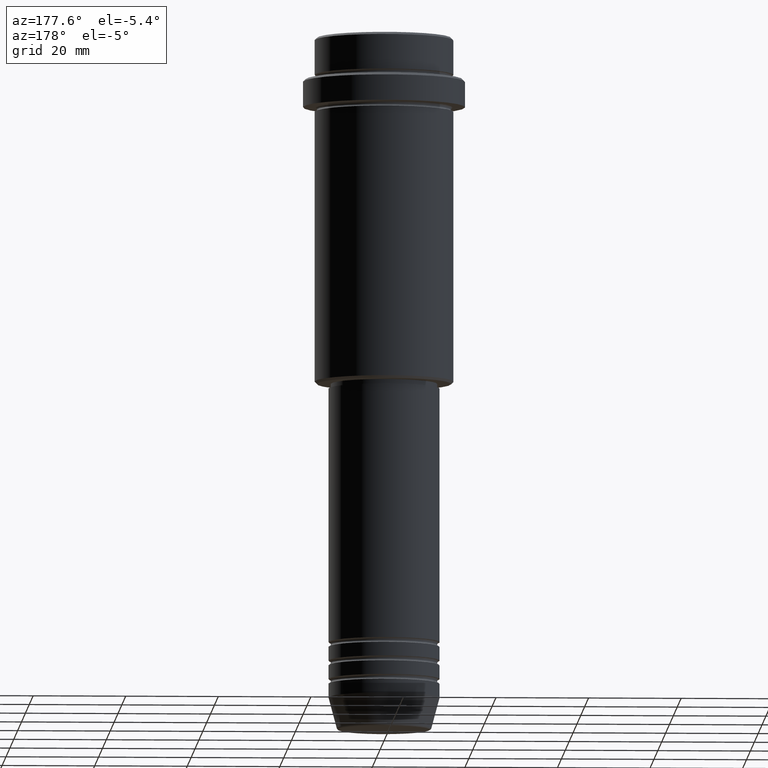
[diagram: clean part render]
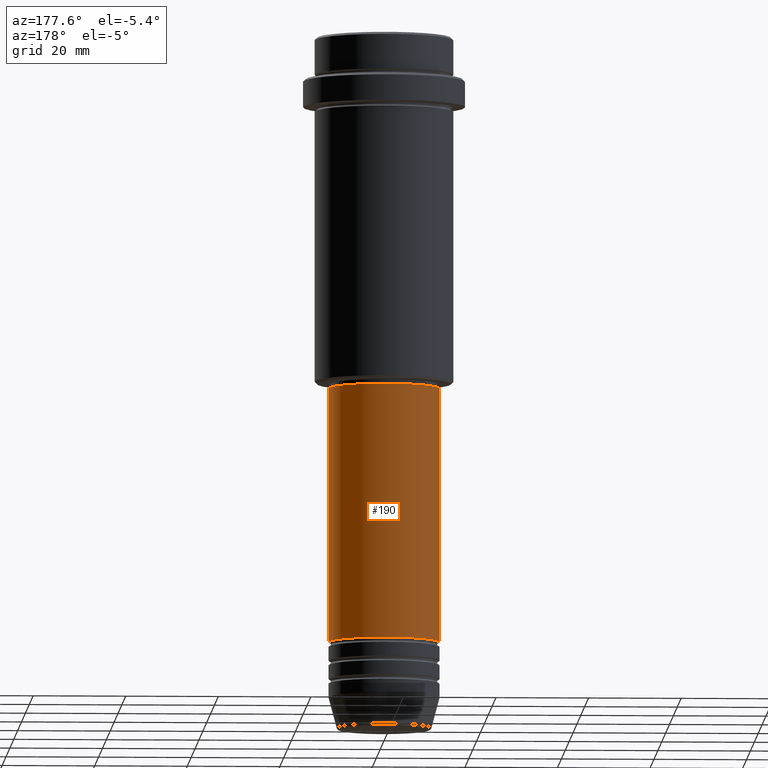
[diagram: same view with one face highlighted and labeled with its STEP entity id]
A machine part, auxiliary view. The second image highlights one B-rep face of the part: STEP entity #190.
In plain terms, the highlighted cylindrical surface (partial cylindrical patch) has radius 12 mm, axis along (-0, -0, 1).
Its self-contained STEP definition (entity closure, byte-faithful):
#5 = ORIENTED_EDGE ( 'NONE', *, *, #665, .F. ) ;
#69 = VERTEX_POINT ( 'NONE', #381 ) ;
#71 = VERTEX_POINT ( 'NONE', #1142 ) ;
#148 = AXIS2_PLACEMENT_3D ( 'NONE', #1237, #286, #724 ) ;
#190 = ADVANCED_FACE ( 'NONE', ( #391 ), #1367, .T. ) ;
#280 = VERTEX_POINT ( 'NONE', #1285 ) ;
#281 = EDGE_CURVE ( 'NONE', #280, #884, #1406, .T. ) ;
#286 = DIRECTION ( 'NONE',  ( -0.000000000000000000, -0.000000000000000000, 1.000000000000000000 ) ) ;
#300 = DIRECTION ( 'NONE',  ( -0.000000000000000000, -0.000000000000000000, 1.000000000000000000 ) ) ;
#313 = CARTESIAN_POINT ( 'NONE',  ( 0.000000000000000000, 0.000000000000000000, -76.00000000000000000 ) ) ;
#315 = DIRECTION ( 'NONE',  ( 1.000000000000000000, 0.000000000000000000, 0.000000000000000000 ) ) ;
#381 = CARTESIAN_POINT ( 'NONE',  ( -11.99999999999999822, 1.469576158976823750E-15, -76.00000000000000000 ) ) ;
#391 = FACE_OUTER_BOUND ( 'NONE', #829, .T. ) ;
#399 = EDGE_CURVE ( 'NONE', #884, #69, #990, .T. ) ;
#411 = ORIENTED_EDGE ( 'NONE', *, *, #281, .T. ) ;
#435 = ORIENTED_EDGE ( 'NONE', *, *, #399, .T. ) ;
#527 = AXIS2_PLACEMENT_3D ( 'NONE', #1391, #1071, #315 ) ;
#638 = DIRECTION ( 'NONE',  ( 1.000000000000000000, 0.000000000000000000, 0.000000000000000000 ) ) ;
#664 = CIRCLE ( 'NONE', #1200, 11.99999999999999822 ) ;
#665 = EDGE_CURVE ( 'NONE', #280, #71, #1148, .T. ) ;
#724 = DIRECTION ( 'NONE',  ( 1.000000000000000000, 0.000000000000000000, 0.000000000000000000 ) ) ;
#759 = EDGE_CURVE ( 'NONE', #71, #69, #664, .T. ) ;
#764 = CARTESIAN_POINT ( 'NONE',  ( 12.00000000000000000, 0.000000000000000000, 0.000000000000000000 ) ) ;
#783 = CARTESIAN_POINT ( 'NONE',  ( -12.00000000000000000, 1.469576158976823947E-15, 0.000000000000000000 ) ) ;
#829 = EDGE_LOOP ( 'NONE', ( #411, #435, #1400, #5 ) ) ;
#884 = VERTEX_POINT ( 'NONE', #1197 ) ;
#945 = DIRECTION ( 'NONE',  ( -0.000000000000000000, -0.000000000000000000, 1.000000000000000000 ) ) ;
#990 = LINE ( 'NONE', #783, #1018 ) ;
#1018 = VECTOR ( 'NONE', #1212, 1000.000000000000000 ) ;
#1071 = DIRECTION ( 'NONE',  ( -0.000000000000000000, -0.000000000000000000, 1.000000000000000000 ) ) ;
#1107 = VECTOR ( 'NONE', #300, 1000.000000000000000 ) ;
#1142 = CARTESIAN_POINT ( 'NONE',  ( 11.99999999999999822, 0.000000000000000000, -76.00000000000000000 ) ) ;
#1148 = LINE ( 'NONE', #764, #1107 ) ;
#1197 = CARTESIAN_POINT ( 'NONE',  ( -12.00000000000000000, 1.469576158976823947E-15, -130.9999999999998863 ) ) ;
#1200 = AXIS2_PLACEMENT_3D ( 'NONE', #313, #945, #638 ) ;
#1212 = DIRECTION ( 'NONE',  ( -0.000000000000000000, -0.000000000000000000, 1.000000000000000000 ) ) ;
#1237 = CARTESIAN_POINT ( 'NONE',  ( 0.000000000000000000, 0.000000000000000000, 0.000000000000000000 ) ) ;
#1285 = CARTESIAN_POINT ( 'NONE',  ( 12.00000000000000000, 0.000000000000000000, -130.9999999999998863 ) ) ;
#1367 = CYLINDRICAL_SURFACE ( 'NONE', #148, 12.00000000000000000 ) ;
#1391 = CARTESIAN_POINT ( 'NONE',  ( 0.000000000000000000, 0.000000000000000000, -130.9999999999998863 ) ) ;
#1400 = ORIENTED_EDGE ( 'NONE', *, *, #759, .F. ) ;
#1406 = CIRCLE ( 'NONE', #527, 12.00000000000000000 ) ;